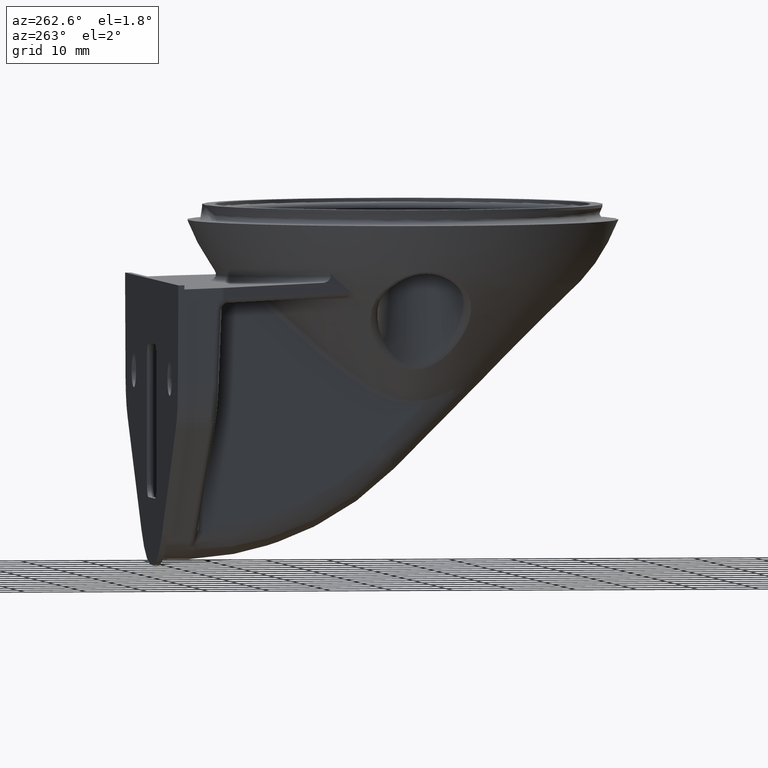
[diagram: clean part render]
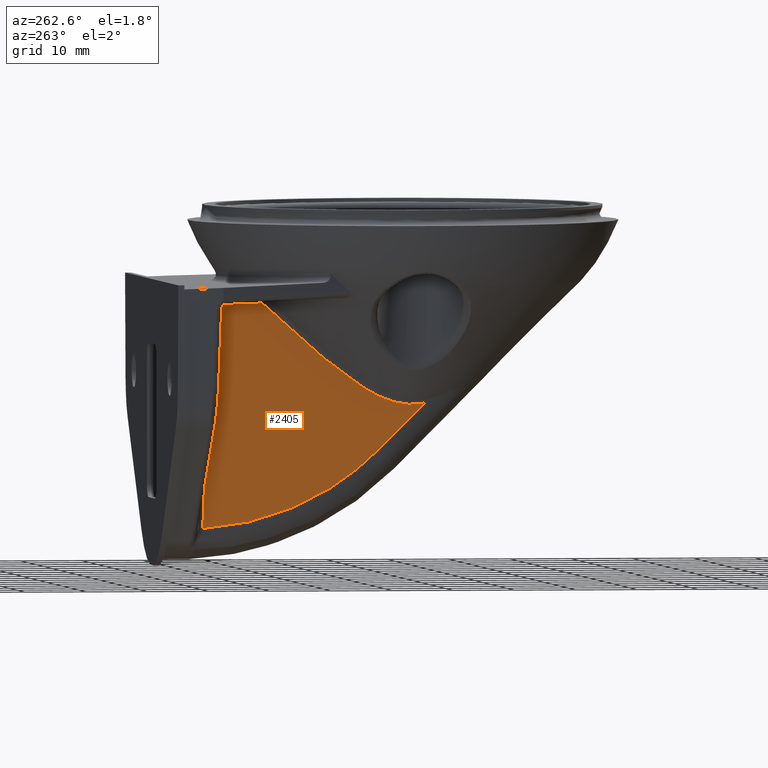
[diagram: same view with one face highlighted and labeled with its STEP entity id]
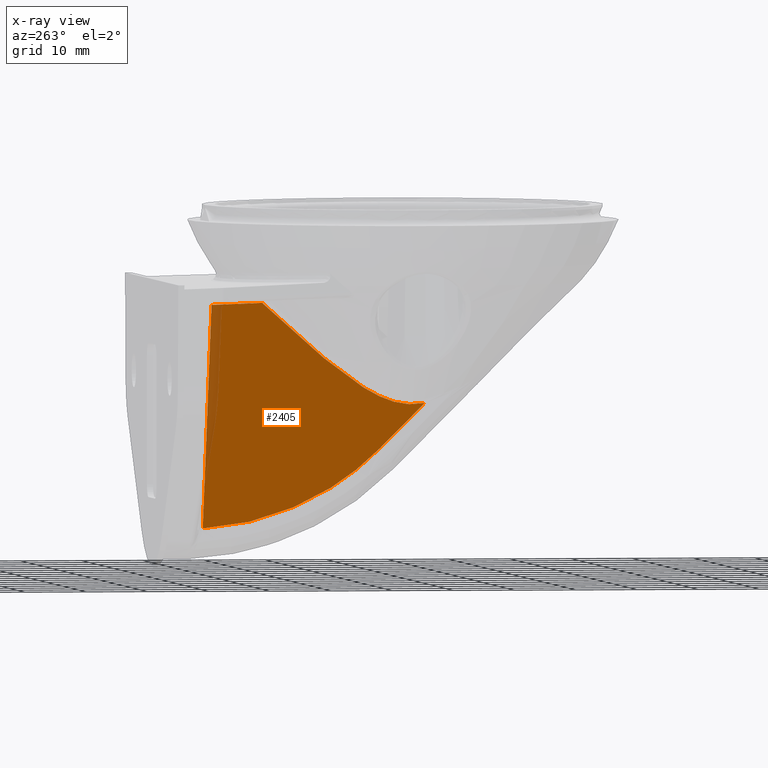
[diagram: x-ray of the same camera — body ghosted, the highlighted face saturated]
A machine part, auxiliary view. The second image highlights one B-rep face of the part: STEP entity #2405.
The next image is the same camera in x-ray: the body ghosted, the highlighted face saturated — about 5% of this face is hidden behind the body in this view.
In plain terms, the highlighted planar face has unit normal (-0.9988, -0.0349, -0.0349).
Its self-contained STEP definition (entity closure, byte-faithful):
#134=ELLIPSE('',#3017,2.96268519850435,2.);
#204=B_SPLINE_CURVE_WITH_KNOTS('',3,(#5071,#5072,#5073,#5074,#5075,#5076,
#5077,#5078,#5079,#5080,#5081,#5082,#5083,#5084,#5085,#5086),.UNSPECIFIED.,
 .F.,.F.,(4,2,2,2,2,2,2,4),(0.,0.125,0.25,0.5,0.5625,0.625,0.75,1.),.UNSPECIFIED.);
#205=B_SPLINE_CURVE_WITH_KNOTS('',3,(#5088,#5089,#5090,#5091),.UNSPECIFIED.,
 .F.,.F.,(4,4),(0.,1.),.UNSPECIFIED.);
#206=B_SPLINE_CURVE_WITH_KNOTS('',3,(#5093,#5094,#5095,#5096,#5097,#5098,
#5099,#5100,#5101,#5102,#5103,#5104,#5105,#5106,#5107,#5108,#5109,#5110,
#5111,#5112,#5113,#5114,#5115,#5116),.UNSPECIFIED.,.F.,.F.,(4,2,2,2,2,2,
2,2,2,2,2,4),(0.,0.0625000000000001,0.0937500000000001,0.125,0.1875,0.25,
0.3125,0.375,0.5,0.625,0.75,1.),.UNSPECIFIED.);
#464=PLANE('',#3018);
#519=FACE_OUTER_BOUND('',#695,.T.);
#695=EDGE_LOOP('',(#1126,#1127,#1128,#1129,#1130,#1131));
#1126=ORIENTED_EDGE('',*,*,#1858,.T.);
#1127=ORIENTED_EDGE('',*,*,#1859,.T.);
#1128=ORIENTED_EDGE('',*,*,#1860,.T.);
#1129=ORIENTED_EDGE('',*,*,#1861,.T.);
#1130=ORIENTED_EDGE('',*,*,#1862,.T.);
#1131=ORIENTED_EDGE('',*,*,#1863,.T.);
#1858=EDGE_CURVE('',#2813,#2814,#2150,.T.);
#1859=EDGE_CURVE('',#2814,#2815,#134,.T.);
#1860=EDGE_CURVE('',#2815,#2816,#204,.T.);
#1861=EDGE_CURVE('',#2816,#2817,#205,.T.);
#1862=EDGE_CURVE('',#2817,#2818,#206,.T.);
#1863=EDGE_CURVE('',#2818,#2813,#2151,.T.);
#2150=LINE('',#5066,#2270);
#2151=LINE('',#5118,#2271);
#2270=VECTOR('',#3479,1.);
#2271=VECTOR('',#3482,1.);
#2405=ADVANCED_FACE('',(#519),#464,.T.);
#2813=VERTEX_POINT('',#5067);
#2814=VERTEX_POINT('',#5068);
#2815=VERTEX_POINT('',#5070);
#2816=VERTEX_POINT('',#5087);
#2817=VERTEX_POINT('',#5092);
#2818=VERTEX_POINT('',#5117);
#3017=AXIS2_PLACEMENT_3D('',#5069,#3480,#3481);
#3018=AXIS2_PLACEMENT_3D('',#5119,#3483,#3484);
#3479=DIRECTION('',(0.0336609504085699,0.0348797194941522,-0.998824481871365));
#3480=DIRECTION('',(0.998782025129912,0.034899496702501,0.0348782368720773));
#3481=DIRECTION('',(0.0348348242170036,0.00185139062296064,-0.999391368471097));
#3482=DIRECTION('',(-0.033682928628583,0.998823741853253,-0.0348796936521427));
#3483=DIRECTION('',(-0.998782025129912,-0.034899496702501,-0.0348782368720773));
#3484=DIRECTION('',(0.0349207435583594,-0.999390084836412,0.));
#5066=CARTESIAN_POINT('',(-10.0434259682517,31.9027951985869,-23.1578948913265));
#5067=CARTESIAN_POINT('',(-11.2678522941092,30.6340358121528,13.1746202536694));
#5068=CARTESIAN_POINT('',(-10.0493186499443,31.8966891593333,-22.9830408047062));
#5069=CARTESIAN_POINT('',(-10.1241699798173,33.8928053191967,-22.8369120449889));
#5070=CARTESIAN_POINT('',(-10.0457282135775,31.901793461418,-23.0909648632853));
#5071=CARTESIAN_POINT('',(-10.0457282135775,31.901793461418,-23.0909648632853));
#5072=CARTESIAN_POINT('',(-10.0005392215965,30.545095982666,-23.0274838372856));
#5073=CARTESIAN_POINT('',(-9.95773697977172,29.1937739190175,-22.9010339209491));
#5074=CARTESIAN_POINT('',(-9.87691221871457,26.5018946356852,-22.5220321471101));
#5075=CARTESIAN_POINT('',(-9.8391930049866,25.1711948420434,-22.2706581909439));
#5076=CARTESIAN_POINT('',(-9.7344367769787,21.2435909453281,-21.3404861238628));
#5077=CARTESIAN_POINT('',(-9.6754662804453,18.7018354991727,-20.4858754401166));
#5078=CARTESIAN_POINT('',(-9.61537913505097,15.6207480534502,-19.1235806496674));
#5079=CARTESIAN_POINT('',(-9.60404841772944,15.0093740863846,-18.8363033141817));
#5080=CARTESIAN_POINT('',(-9.58278377635042,13.7964780281553,-18.2316075985752));
#5081=CARTESIAN_POINT('',(-9.57283553369467,13.1938771916295,-17.9135198465542));
#5082=CARTESIAN_POINT('',(-9.5453775043673,11.4177551887659,-16.9226103011185));
#5083=CARTESIAN_POINT('',(-9.53015795531029,10.2711589888699,-16.2111460616954));
#5084=CARTESIAN_POINT('',(-9.49354889483982,6.94130122121945,-13.9276049263096));
#5085=CARTESIAN_POINT('',(-9.48113089870626,4.86702210448464,-12.2076663271128));
#5086=CARTESIAN_POINT('',(-9.48108909294348,2.94308409723027,-10.2837527548271));
#5087=CARTESIAN_POINT('',(-9.48108909294348,2.9430840972303,-10.283752754827));
#5088=CARTESIAN_POINT('',(-9.48108909294348,2.9430840972303,-10.283752754827));
#5089=CARTESIAN_POINT('',(-9.48103570130851,0.485954051588036,-7.82665391595727));
#5090=CARTESIAN_POINT('',(-9.48098230968913,-1.97117599383107,-5.36955507686434));
#5091=CARTESIAN_POINT('',(-9.48092891808534,-4.42830603902702,-2.91245623754826));
#5092=CARTESIAN_POINT('',(-9.48092891808534,-4.42830603902702,-2.91245623754826));
#5093=CARTESIAN_POINT('',(-9.48092891808534,-4.42830603902701,-2.91245623754825));
#5094=CARTESIAN_POINT('',(-9.4998404887859,-3.75456718389382,-3.04504923780038));
#5095=CARTESIAN_POINT('',(-9.52104906725732,-3.07814079342161,-3.11455371524423));
#5096=CARTESIAN_POINT('',(-9.55661229824553,-2.05911322349316,-3.11580473748097));
#5097=CARTESIAN_POINT('',(-9.56908784250123,-1.718710630355,-3.09916197593083));
#5098=CARTESIAN_POINT('',(-9.59527935698993,-1.03645412611111,-3.03180750297535));
#5099=CARTESIAN_POINT('',(-9.60888084600492,-0.697661078902889,-2.98131137509617));
#5100=CARTESIAN_POINT('',(-9.65063264891565,0.302275311242526,-2.78624206759755));
#5101=CARTESIAN_POINT('',(-9.67990174289996,0.951628407460365,-2.59783378459684));
#5102=CARTESIAN_POINT('',(-9.74057648027479,2.22461191970177,-2.13409608934106));
#5103=CARTESIAN_POINT('',(-9.77216288505407,2.85166493320682,-1.85701503187935));
#5104=CARTESIAN_POINT('',(-9.8357912267832,4.06676927035513,-1.25078271922179));
#5105=CARTESIAN_POINT('',(-9.86784883281023,4.6555957818222,-0.921958420698069));
#5106=CARTESIAN_POINT('',(-9.93228958330036,5.80820755324948,-0.229931107283188));
#5107=CARTESIAN_POINT('',(-9.9646739024276,6.37190245503127,0.13339595884343));
#5108=CARTESIAN_POINT('',(-10.0621693404275,8.03664267276194,1.259545064698));
#5109=CARTESIAN_POINT('',(-10.1276144621238,9.11199563480452,2.05763970841356));
#5110=CARTESIAN_POINT('',(-10.2589776051536,11.2263249058048,3.70376989590152));
#5111=CARTESIAN_POINT('',(-10.3249023119633,12.2647869507907,4.55251146409991));
#5112=CARTESIAN_POINT('',(-10.4570371970515,14.3197518431409,6.28014201651085));
#5113=CARTESIAN_POINT('',(-10.5232662146991,15.3363147674846,7.15951037606596));
#5114=CARTESIAN_POINT('',(-10.7221150512562,18.3630052727539,9.82526061751685));
#5115=CARTESIAN_POINT('',(-10.8547960791112,20.3494128686185,11.6371297377179));
#5116=CARTESIAN_POINT('',(-10.9875298731725,22.3214364983338,13.4649026181845));
#5117=CARTESIAN_POINT('',(-10.9875298731725,22.3214364983338,13.4649026181845));
#5118=CARTESIAN_POINT('',(-11.2981850214136,31.5335136610314,13.1432097950457));
#5119=CARTESIAN_POINT('',(-9.90629996232513,32.9472229619576,-28.1297343170714));